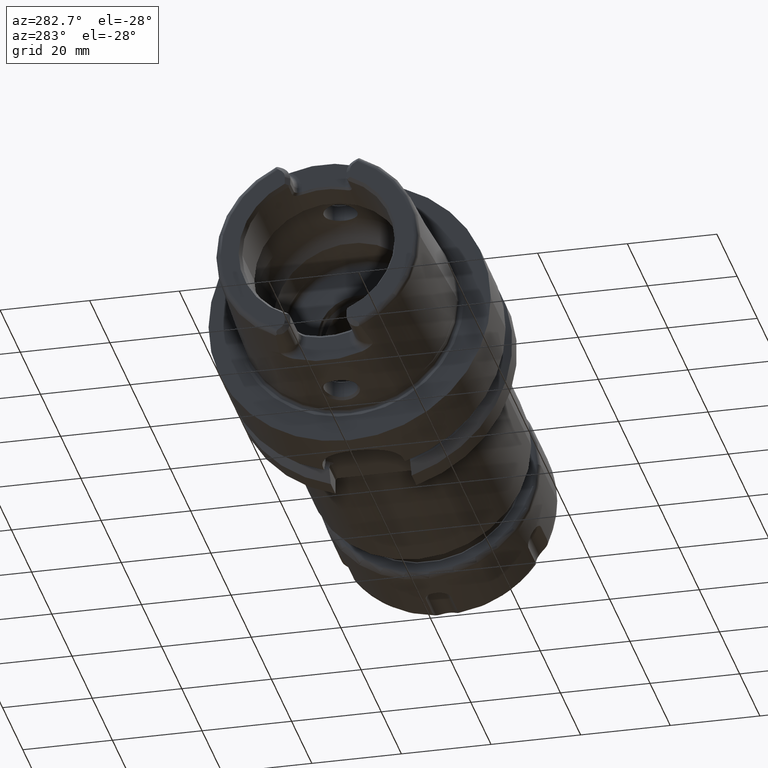
[diagram: clean part render]
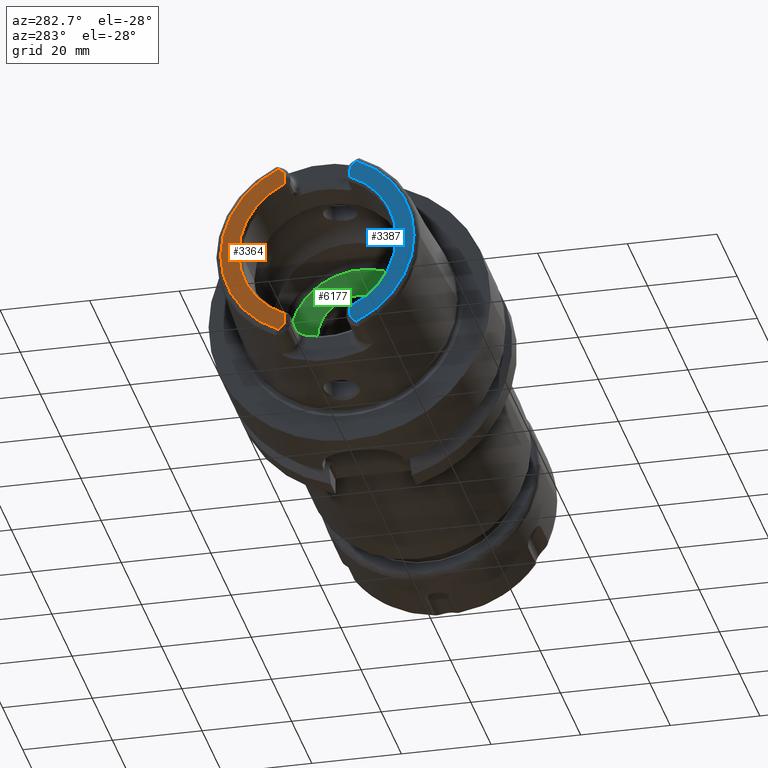
[diagram: same view with three faces highlighted in distinct colors, each labeled with its STEP entity id]
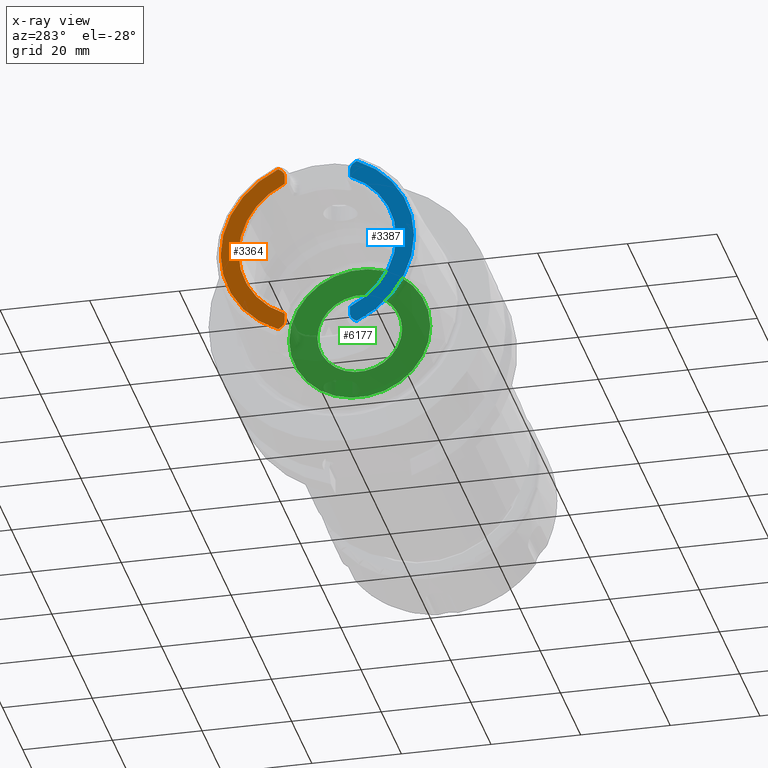
[diagram: x-ray of the same camera — body ghosted, the three highlighted faces saturated]
A machine part, auxiliary view with three faces highlighted in distinct colors.
The next image is the same camera in x-ray (body ghosted, the three faces saturated) — at least one of them is partly hidden behind the body in this view.
Their STEP definitions:

[orange] entity #3364 — the highlighted planar face has unit normal (1, 0, 0).
#215=CARTESIAN_POINT('',(-3.2E1,0.E0,0.E0));
#216=DIRECTION('',(-1.E0,0.E0,0.E0));
#217=DIRECTION('',(0.E0,4.056746540583E-1,9.140175463604E-1));
#218=AXIS2_PLACEMENT_3D('',#215,#216,#217);
#289=DIRECTION('',(0.E0,0.E0,1.E0));
#290=VECTOR('',#289,1.666552168805E0);
#291=CARTESIAN_POINT('',(-3.2E1,7.27E0,-1.767E1));
#292=LINE('',#291,#290);
#293=CARTESIAN_POINT('',(-3.2E1,9.27E0,-1.767E1));
#294=DIRECTION('',(1.E0,0.E0,0.E0));
#295=DIRECTION('',(0.E0,-1.E0,0.E0));
#296=AXIS2_PLACEMENT_3D('',#293,#294,#295);
#298=DIRECTION('',(0.E0,-8.373245684230E-1,5.467061067112E-1));
#299=VECTOR('',#298,6.882400885956E-1);
#300=CARTESIAN_POINT('',(-3.2E1,8.752868121732E0,-1.972091419616E1));
#301=LINE('',#300,#299);
#302=DIRECTION('',(0.E0,-8.373245684230E-1,-5.467061067112E-1));
#303=VECTOR('',#302,6.882400885957E-1);
#304=CARTESIAN_POINT('',(-3.2E1,8.752868121732E0,1.972091419616E1));
#305=LINE('',#304,#303);
#306=CARTESIAN_POINT('',(-3.2E1,9.27E0,1.767E1));
#307=DIRECTION('',(-1.E0,0.E0,0.E0));
#308=DIRECTION('',(0.E0,-1.E0,0.E0));
#309=AXIS2_PLACEMENT_3D('',#306,#307,#308);
#311=DIRECTION('',(0.E0,0.E0,1.E0));
#312=VECTOR('',#311,1.666552168805E0);
#313=CARTESIAN_POINT('',(-3.2E1,7.27E0,1.600344783120E1));
#314=LINE('',#313,#312);
#346=CARTESIAN_POINT('',(-3.2E1,0.E0,0.E0));
#347=DIRECTION('',(1.E0,0.E0,0.E0));
#348=DIRECTION('',(0.E0,4.136004510727E-1,-9.104584926686E-1));
#349=AXIS2_PLACEMENT_3D('',#346,#347,#348);
#2759=CARTESIAN_POINT('',(-3.2E1,7.27E0,1.600344783120E1));
#2760=CARTESIAN_POINT('',(-3.2E1,7.27E0,1.767E1));
#2761=VERTEX_POINT('',#2759);
#2762=VERTEX_POINT('',#2760);
#2763=CARTESIAN_POINT('',(-3.2E1,8.176587786578E0,1.934464913685E1));
#2764=VERTEX_POINT('',#2763);
#2765=CARTESIAN_POINT('',(-3.2E1,8.752868121732E0,1.972091419616E1));
#2766=VERTEX_POINT('',#2765);
#2855=CARTESIAN_POINT('',(-3.2E1,7.27E0,-1.767E1));
#2856=CARTESIAN_POINT('',(-3.2E1,7.27E0,-1.600344783120E1));
#2857=VERTEX_POINT('',#2855);
#2858=VERTEX_POINT('',#2856);
#2859=CARTESIAN_POINT('',(-3.2E1,8.176587786578E0,-1.934464913685E1));
#2860=VERTEX_POINT('',#2859);
#2861=CARTESIAN_POINT('',(-3.2E1,8.752868121732E0,-1.972091419616E1));
#2862=VERTEX_POINT('',#2861);
#3343=CARTESIAN_POINT('',(-3.2E1,0.E0,0.E0));
#3344=DIRECTION('',(1.E0,0.E0,0.E0));
#3345=DIRECTION('',(0.E0,-1.E0,0.E0));
#3346=AXIS2_PLACEMENT_3D('',#3343,#3344,#3345);
#3347=PLANE('',#3346);
#3349=ORIENTED_EDGE('',*,*,#3348,.F.);
#3351=ORIENTED_EDGE('',*,*,#3350,.T.);
#3352=ORIENTED_EDGE('',*,*,#3333,.F.);
#3353=ORIENTED_EDGE('',*,*,#3300,.F.);
#3355=ORIENTED_EDGE('',*,*,#3354,.T.);
#3357=ORIENTED_EDGE('',*,*,#3356,.F.);
#3359=ORIENTED_EDGE('',*,*,#3358,.F.);
#3361=ORIENTED_EDGE('',*,*,#3360,.F.);
#3362=EDGE_LOOP('',(#3349,#3351,#3352,#3353,#3355,#3357,#3359,#3361));
#3363=FACE_OUTER_BOUND('',#3362,.F.);
#3364=ADVANCED_FACE('',(#3363),#3347,.F.);
#219=CIRCLE('',#218,2.157607835286E1);
#297=CIRCLE('',#296,2.E0);
#310=CIRCLE('',#309,2.E0);
#350=CIRCLE('',#349,1.757735026919E1);
#3300=EDGE_CURVE('',#2766,#2862,#219,.T.);
#3333=EDGE_CURVE('',#2862,#2860,#301,.T.);
#3348=EDGE_CURVE('',#2857,#2858,#292,.T.);
#3350=EDGE_CURVE('',#2857,#2860,#297,.T.);
#3354=EDGE_CURVE('',#2766,#2764,#305,.T.);
#3356=EDGE_CURVE('',#2762,#2764,#310,.T.);
#3358=EDGE_CURVE('',#2761,#2762,#314,.T.);
#3360=EDGE_CURVE('',#2858,#2761,#350,.T.);

[blue] entity #3387 — the highlighted planar face has unit normal (1, 0, 0).
#231=CARTESIAN_POINT('',(-3.2E1,0.E0,0.E0));
#232=DIRECTION('',(-1.E0,0.E0,0.E0));
#233=DIRECTION('',(0.E0,-4.056746540583E-1,-9.140175463604E-1));
#234=AXIS2_PLACEMENT_3D('',#231,#232,#233);
#315=DIRECTION('',(0.E0,0.E0,-1.E0));
#316=VECTOR('',#315,1.666552168805E0);
#317=CARTESIAN_POINT('',(-3.2E1,-7.27E0,-1.600344783120E1));
#318=LINE('',#317,#316);
#319=DIRECTION('',(0.E0,0.E0,1.E0));
#320=VECTOR('',#319,1.666552168805E0);
#321=CARTESIAN_POINT('',(-3.2E1,-7.27E0,1.600344783120E1));
#322=LINE('',#321,#320);
#323=CARTESIAN_POINT('',(-3.2E1,-9.27E0,1.767E1));
#324=DIRECTION('',(1.E0,0.E0,0.E0));
#325=DIRECTION('',(0.E0,1.E0,1.065814103640E-14));
#326=AXIS2_PLACEMENT_3D('',#323,#324,#325);
#328=DIRECTION('',(0.E0,8.373245684230E-1,-5.467061067112E-1));
#329=VECTOR('',#328,6.882400885957E-1);
#330=CARTESIAN_POINT('',(-3.2E1,-8.752868121732E0,1.972091419616E1));
#331=LINE('',#330,#329);
#332=DIRECTION('',(0.E0,8.373245684230E-1,5.467061067112E-1));
#333=VECTOR('',#332,6.882400885957E-1);
#334=CARTESIAN_POINT('',(-3.2E1,-8.752868121732E0,-1.972091419616E1));
#335=LINE('',#334,#333);
#336=CARTESIAN_POINT('',(-3.2E1,-9.27E0,-1.767E1));
#337=DIRECTION('',(-1.E0,0.E0,0.E0));
#338=DIRECTION('',(0.E0,1.E0,0.E0));
#339=AXIS2_PLACEMENT_3D('',#336,#337,#338);
#410=CARTESIAN_POINT('',(-3.2E1,0.E0,0.E0));
#411=DIRECTION('',(1.E0,0.E0,0.E0));
#412=DIRECTION('',(0.E0,-4.136004510727E-1,9.104584926686E-1));
#413=AXIS2_PLACEMENT_3D('',#410,#411,#412);
#2775=CARTESIAN_POINT('',(-3.2E1,-7.27E0,1.600344783120E1));
#2776=CARTESIAN_POINT('',(-3.2E1,-7.27E0,1.767E1));
#2777=VERTEX_POINT('',#2775);
#2778=VERTEX_POINT('',#2776);
#2779=CARTESIAN_POINT('',(-3.2E1,-8.176587786578E0,1.934464913685E1));
#2780=VERTEX_POINT('',#2779);
#2781=CARTESIAN_POINT('',(-3.2E1,-8.752868121732E0,1.972091419616E1));
#2782=VERTEX_POINT('',#2781);
#2872=CARTESIAN_POINT('',(-3.2E1,-7.27E0,-1.600344783120E1));
#2873=CARTESIAN_POINT('',(-3.2E1,-7.27E0,-1.767E1));
#2874=VERTEX_POINT('',#2872);
#2875=VERTEX_POINT('',#2873);
#2876=CARTESIAN_POINT('',(-3.2E1,-8.176587786578E0,-1.934464913685E1));
#2877=VERTEX_POINT('',#2876);
#2878=CARTESIAN_POINT('',(-3.2E1,-8.752868121732E0,-1.972091419616E1));
#2879=VERTEX_POINT('',#2878);
#3365=CARTESIAN_POINT('',(-3.2E1,0.E0,0.E0));
#3366=DIRECTION('',(1.E0,0.E0,0.E0));
#3367=DIRECTION('',(0.E0,-1.E0,0.E0));
#3368=AXIS2_PLACEMENT_3D('',#3365,#3366,#3367);
#3369=PLANE('',#3368);
#3371=ORIENTED_EDGE('',*,*,#3370,.F.);
#3373=ORIENTED_EDGE('',*,*,#3372,.F.);
#3375=ORIENTED_EDGE('',*,*,#3374,.T.);
#3377=ORIENTED_EDGE('',*,*,#3376,.T.);
#3379=ORIENTED_EDGE('',*,*,#3378,.F.);
#3380=ORIENTED_EDGE('',*,*,#3312,.F.);
#3382=ORIENTED_EDGE('',*,*,#3381,.T.);
#3384=ORIENTED_EDGE('',*,*,#3383,.F.);
#3385=EDGE_LOOP('',(#3371,#3373,#3375,#3377,#3379,#3380,#3382,#3384));
#3386=FACE_OUTER_BOUND('',#3385,.F.);
#3387=ADVANCED_FACE('',(#3386),#3369,.F.);
#235=CIRCLE('',#234,2.157607835286E1);
#327=CIRCLE('',#326,2.E0);
#340=CIRCLE('',#339,2.E0);
#414=CIRCLE('',#413,1.757735026919E1);
#3312=EDGE_CURVE('',#2879,#2782,#235,.T.);
#3370=EDGE_CURVE('',#2874,#2875,#318,.T.);
#3372=EDGE_CURVE('',#2777,#2874,#414,.T.);
#3374=EDGE_CURVE('',#2777,#2778,#322,.T.);
#3376=EDGE_CURVE('',#2778,#2780,#327,.T.);
#3378=EDGE_CURVE('',#2782,#2780,#331,.T.);
#3381=EDGE_CURVE('',#2879,#2877,#335,.T.);
#3383=EDGE_CURVE('',#2875,#2877,#340,.T.);

[green] entity #6177 — the highlighted planar face has unit normal (1, 0, 0).
#2472=CARTESIAN_POINT('',(1.E1,0.E0,0.E0));
#2473=DIRECTION('',(1.E0,0.E0,0.E0));
#2474=DIRECTION('',(0.E0,1.E0,0.E0));
#2475=AXIS2_PLACEMENT_3D('',#2472,#2473,#2474);
#2482=CARTESIAN_POINT('',(1.E1,0.E0,0.E0));
#2483=DIRECTION('',(-1.E0,0.E0,0.E0));
#2484=DIRECTION('',(0.E0,1.E0,0.E0));
#2485=AXIS2_PLACEMENT_3D('',#2482,#2483,#2484);
#2492=CARTESIAN_POINT('',(1.E1,0.E0,0.E0));
#2493=DIRECTION('',(1.E0,0.E0,0.E0));
#2494=DIRECTION('',(0.E0,1.E0,0.E0));
#2495=AXIS2_PLACEMENT_3D('',#2492,#2493,#2494);
#2497=CARTESIAN_POINT('',(1.E1,0.E0,0.E0));
#2498=DIRECTION('',(1.E0,0.E0,0.E0));
#2499=DIRECTION('',(0.E0,-1.E0,0.E0));
#2500=AXIS2_PLACEMENT_3D('',#2497,#2498,#2499);
#2700=CARTESIAN_POINT('',(1.E1,1.575E1,0.E0));
#2702=VERTEX_POINT('',#2700);
#2704=CARTESIAN_POINT('',(1.E1,-1.575E1,0.E0));
#2706=VERTEX_POINT('',#2704);
#2951=CARTESIAN_POINT('',(1.E1,9.451175134595E0,0.E0));
#2952=CARTESIAN_POINT('',(1.E1,-9.451175134595E0,0.E0));
#2953=VERTEX_POINT('',#2951);
#2954=VERTEX_POINT('',#2952);
#6162=CARTESIAN_POINT('',(1.E1,0.E0,0.E0));
#6163=DIRECTION('',(1.E0,0.E0,0.E0));
#6164=DIRECTION('',(0.E0,-1.E0,0.E0));
#6165=AXIS2_PLACEMENT_3D('',#6162,#6163,#6164);
#6166=PLANE('',#6165);
#6167=ORIENTED_EDGE('',*,*,#6144,.T.);
#6168=ORIENTED_EDGE('',*,*,#6155,.F.);
#6169=EDGE_LOOP('',(#6167,#6168));
#6170=FACE_OUTER_BOUND('',#6169,.F.);
#6172=ORIENTED_EDGE('',*,*,#6171,.F.);
#6174=ORIENTED_EDGE('',*,*,#6173,.F.);
#6175=EDGE_LOOP('',(#6172,#6174));
#6176=FACE_BOUND('',#6175,.F.);
#6177=ADVANCED_FACE('',(#6170,#6176),#6166,.F.);
#2476=CIRCLE('',#2475,1.575E1);
#2486=CIRCLE('',#2485,1.575E1);
#2496=CIRCLE('',#2495,9.451175134595E0);
#2501=CIRCLE('',#2500,9.451175134595E0);
#6144=EDGE_CURVE('',#2702,#2706,#2476,.T.);
#6155=EDGE_CURVE('',#2702,#2706,#2486,.T.);
#6171=EDGE_CURVE('',#2953,#2954,#2496,.T.);
#6173=EDGE_CURVE('',#2954,#2953,#2501,.T.);